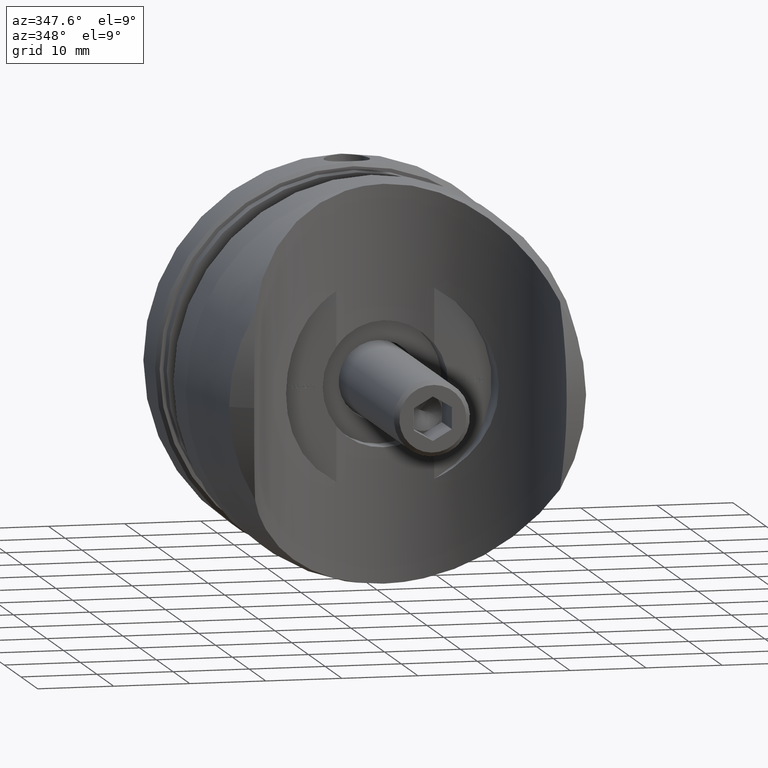
[diagram: clean part render]
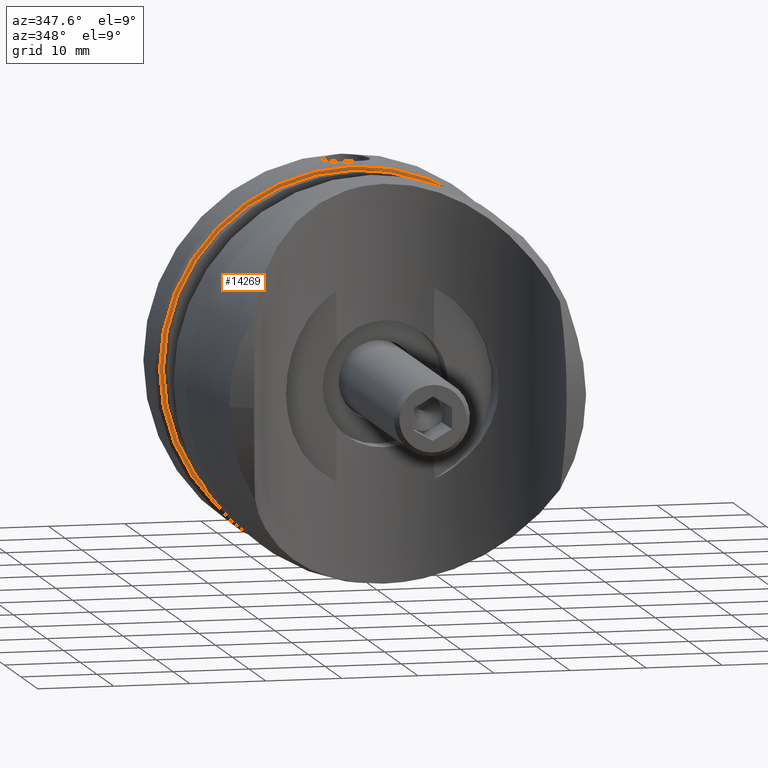
[diagram: same view with one face highlighted and labeled with its STEP entity id]
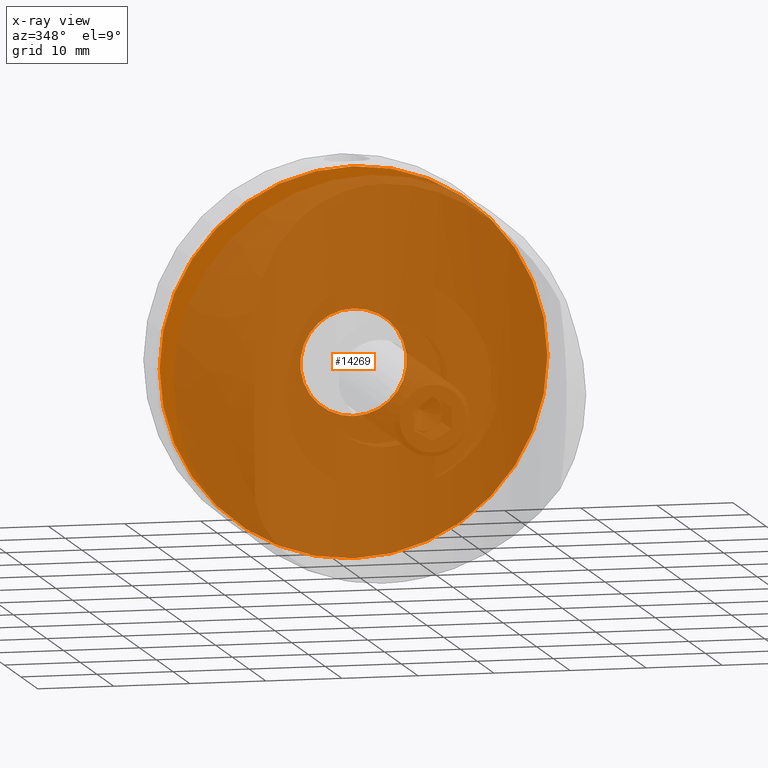
[diagram: x-ray of the same camera — body ghosted, the highlighted face saturated]
A machine part, auxiliary view. The second image highlights one B-rep face of the part: STEP entity #14269.
The next image is the same camera in x-ray: the body ghosted, the highlighted face saturated — about 94% of this face is hidden behind the body in this view.
In plain terms, the highlighted planar face has unit normal (0, -1, 0).
Its self-contained STEP definition (entity closure, byte-faithful):
#331 = ORIENTED_EDGE ( 'NONE', *, *, #4448, .T. ) ;
#604 = EDGE_LOOP ( 'NONE', ( #16236, #4425 ) ) ;
#716 = CARTESIAN_POINT ( 'NONE',  ( 0.000000000000000000, 7.999999999999998224, 0.000000000000000000 ) ) ;
#816 = DIRECTION ( 'NONE',  ( -0.000000000000000000, -1.000000000000000000, -0.000000000000000000 ) ) ;
#1862 = DIRECTION ( 'NONE',  ( 0.000000000000000000, 0.000000000000000000, -1.000000000000000000 ) ) ;
#2031 = DIRECTION ( 'NONE',  ( 0.000000000000000000, 0.000000000000000000, -1.000000000000000000 ) ) ;
#2083 = EDGE_CURVE ( 'NONE', #16750, #7699, #7371, .T. ) ;
#3149 = DIRECTION ( 'NONE',  ( -0.000000000000000000, -1.000000000000000000, -0.000000000000000000 ) ) ;
#4174 = CARTESIAN_POINT ( 'NONE',  ( 0.000000000000000000, 8.000000000000000000, 25.49999999999999289 ) ) ;
#4276 = CIRCLE ( 'NONE', #9258, 25.49999999999999289 ) ;
#4425 = ORIENTED_EDGE ( 'NONE', *, *, #2083, .F. ) ;
#4448 = EDGE_CURVE ( 'NONE', #6594, #7562, #10893, .T. ) ;
#5156 = DIRECTION ( 'NONE',  ( 0.000000000000000000, 0.000000000000000000, -1.000000000000000000 ) ) ;
#5217 = DIRECTION ( 'NONE',  ( -0.000000000000000000, -1.000000000000000000, -0.000000000000000000 ) ) ;
#5225 = CARTESIAN_POINT ( 'NONE',  ( 0.000000000000000000, 7.999999999999998224, -6.999999999999999112 ) ) ;
#6594 = VERTEX_POINT ( 'NONE', #13204 ) ;
#6604 = CARTESIAN_POINT ( 'NONE',  ( 0.000000000000000000, 8.000000000000000000, 0.000000000000000000 ) ) ;
#7225 = PLANE ( 'NONE',  #14089 ) ;
#7371 = CIRCLE ( 'NONE', #9969, 6.999999999999999112 ) ;
#7513 = CARTESIAN_POINT ( 'NONE',  ( 0.000000000000000000, 7.999999999999998224, 0.000000000000000000 ) ) ;
#7562 = VERTEX_POINT ( 'NONE', #4174 ) ;
#7699 = VERTEX_POINT ( 'NONE', #5225 ) ;
#9030 = CIRCLE ( 'NONE', #14348, 6.999999999999999112 ) ;
#9036 = EDGE_CURVE ( 'NONE', #7562, #6594, #4276, .T. ) ;
#9258 = AXIS2_PLACEMENT_3D ( 'NONE', #6604, #5217, #11794 ) ;
#9629 = CARTESIAN_POINT ( 'NONE',  ( 0.000000000000000000, 8.000000000000000000, 0.000000000000000000 ) ) ;
#9869 = CARTESIAN_POINT ( 'NONE',  ( 26.00000000000000355, 8.000000000000000000, 0.000000000000000000 ) ) ;
#9969 = AXIS2_PLACEMENT_3D ( 'NONE', #7513, #12877, #5156 ) ;
#10893 = CIRCLE ( 'NONE', #16579, 25.49999999999999289 ) ;
#10990 = ORIENTED_EDGE ( 'NONE', *, *, #9036, .T. ) ;
#11159 = DIRECTION ( 'NONE',  ( 0.000000000000000000, -1.000000000000000000, -0.000000000000000000 ) ) ;
#11215 = DIRECTION ( 'NONE',  ( 0.000000000000000000, 0.000000000000000000, -1.000000000000000000 ) ) ;
#11794 = DIRECTION ( 'NONE',  ( 0.000000000000000000, 0.000000000000000000, -1.000000000000000000 ) ) ;
#12535 = FACE_BOUND ( 'NONE', #604, .T. ) ;
#12877 = DIRECTION ( 'NONE',  ( -0.000000000000000000, -1.000000000000000000, -0.000000000000000000 ) ) ;
#13204 = CARTESIAN_POINT ( 'NONE',  ( 3.153465507804433615E-15, 8.000000000000000000, -25.49999999999999289 ) ) ;
#13767 = FACE_OUTER_BOUND ( 'NONE', #16938, .T. ) ;
#14089 = AXIS2_PLACEMENT_3D ( 'NONE', #9869, #11159, #11215 ) ;
#14269 = ADVANCED_FACE ( 'NONE', ( #13767, #12535 ), #7225, .T. ) ;
#14348 = AXIS2_PLACEMENT_3D ( 'NONE', #716, #816, #2031 ) ;
#16236 = ORIENTED_EDGE ( 'NONE', *, *, #16775, .F. ) ;
#16579 = AXIS2_PLACEMENT_3D ( 'NONE', #9629, #3149, #1862 ) ;
#16609 = CARTESIAN_POINT ( 'NONE',  ( 8.572527594031472204E-16, 7.999999999999998224, 6.999999999999999112 ) ) ;
#16750 = VERTEX_POINT ( 'NONE', #16609 ) ;
#16775 = EDGE_CURVE ( 'NONE', #7699, #16750, #9030, .T. ) ;
#16938 = EDGE_LOOP ( 'NONE', ( #10990, #331 ) ) ;